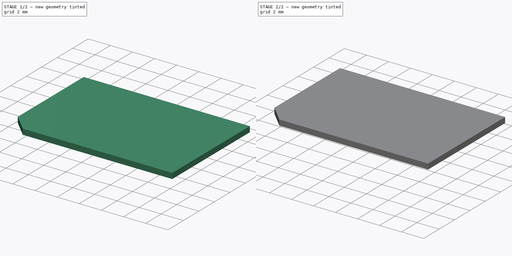
[diagram: build sequence overview — one tinted view per stage of 2, left to right]
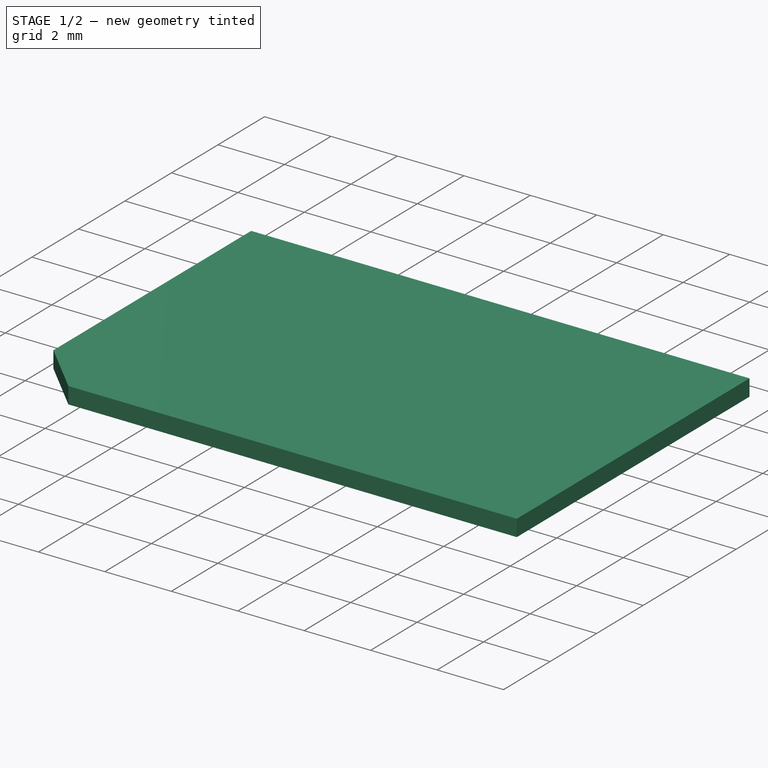
[diagram: stage 1 of 2 — iso view after this stage's code; geometry added in this stage tinted green]
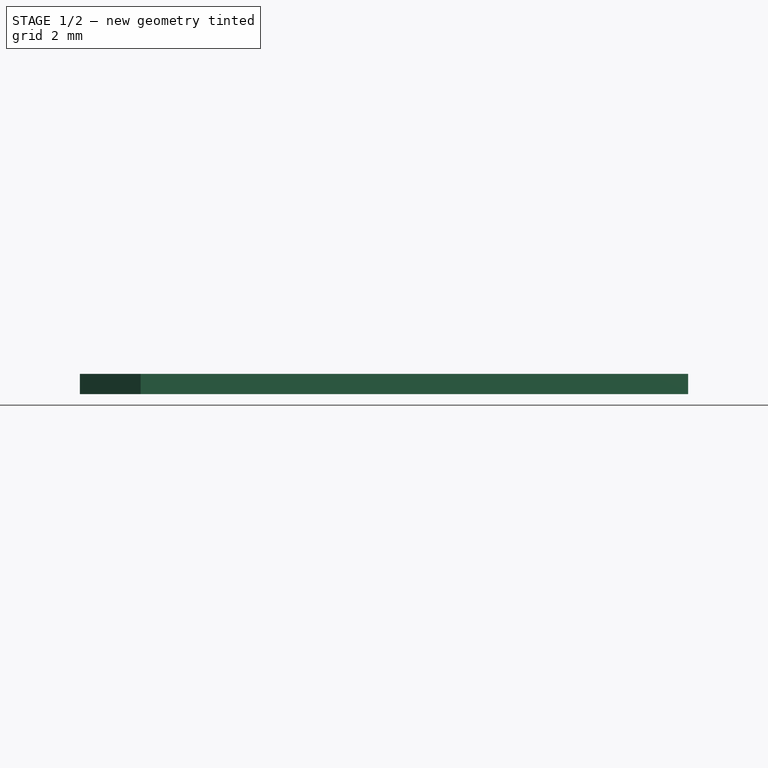
[diagram: stage 1 of 2 — front view after this stage's code; geometry added in this stage tinted green]
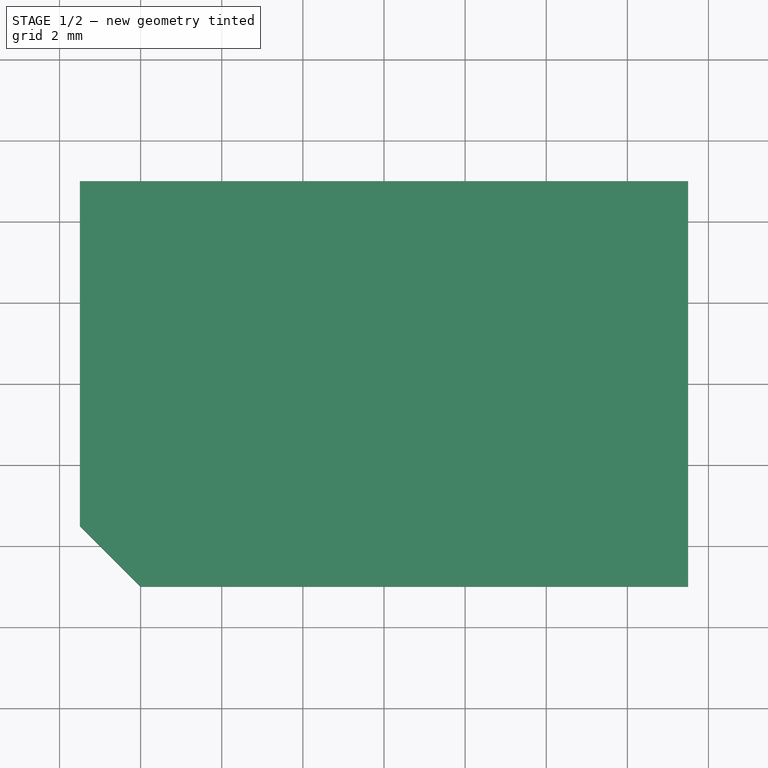
[diagram: stage 1 of 2 — top view after this stage's code; geometry added in this stage tinted green]
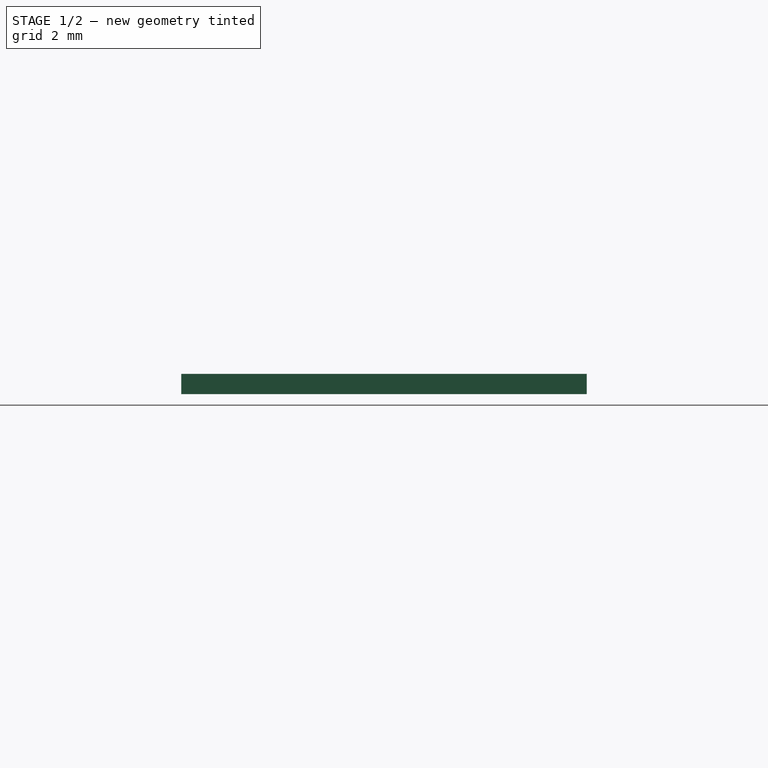
[diagram: stage 1 of 2 — right view after this stage's code; geometry added in this stage tinted green]
FCSTD DOCUMENT  (FreeCAD 1.0R39319 (Git))
Label: Keypad-ButtonWhite
License: All rights reserved
LicenseURL: http://en.wikipedia.org/wiki/All_rights_reserved
objects: Sketcher::SketchObject×2, PartDesign::Pad×2, PartDesign::Body×1
note: 11 computed .brp shape members not serialized (recipe doc carries the construction recipe); baked Part::Feature solids carry a one-line shape summary decoded from their .brp

FEATURE [Sketcher::SketchObject] Sketch002  label="Sketch001"
  ArcFitTolerance = 0
  FullyConstrained = true
  MakeInternals = false
  MapMode = 5
  Placement = pos=(0,0,1.4) rot=(0,0,1;0rad)
  sketch-geometry (5):
    g0: LineSegment StartX=-7.5 StartY=5 StartZ=0 EndX=7.5 EndY=5 EndZ=0
    g1: LineSegment StartX=7.5 StartY=5 StartZ=0 EndX=7.5 EndY=-5 EndZ=0
    g2: LineSegment StartX=7.5 StartY=-5 StartZ=0 EndX=-6 EndY=-5 EndZ=0
    g3: LineSegment StartX=-7.5 StartY=-3.5 StartZ=0 EndX=-7.5 EndY=5 EndZ=0
    g4: LineSegment StartX=-7.5 StartY=-3.5 StartZ=0 EndX=-6 EndY=-5 EndZ=0
  constraints (13):
    c: Coincident(g0,g1)
    c: Coincident(g1,g2)
    c: Coincident(g3,g0)
    c: Horizontal(g2)
    c: Vertical(g3)
    c: DistanceX(g0,g0) = 15
    c: DistanceY(g1,g1) = 10
    c: Angle(g2,g4) = 2.35619
    c: Coincident(g2,g4)
    c: Coincident(g3,g4)
    c: DistanceY(g3,g3) = 8.5
    c: Symmetric(g0,g0,g-2)
    c: Symmetric(g0,g1,g-1)
FEATURE [PartDesign::Pad] Pad
  AllowMultiFace = false
  Direction = (0,0,1)
  Length = 0.5
  Length2 = 100
  Placement = pos=(0,0,1.4) rot=(0,0,1;0rad)
  Profile = -> Sketch002
  ReferenceAxis = -> Sketch002 [N_Axis]
  Suppressed = false
  Type = 0
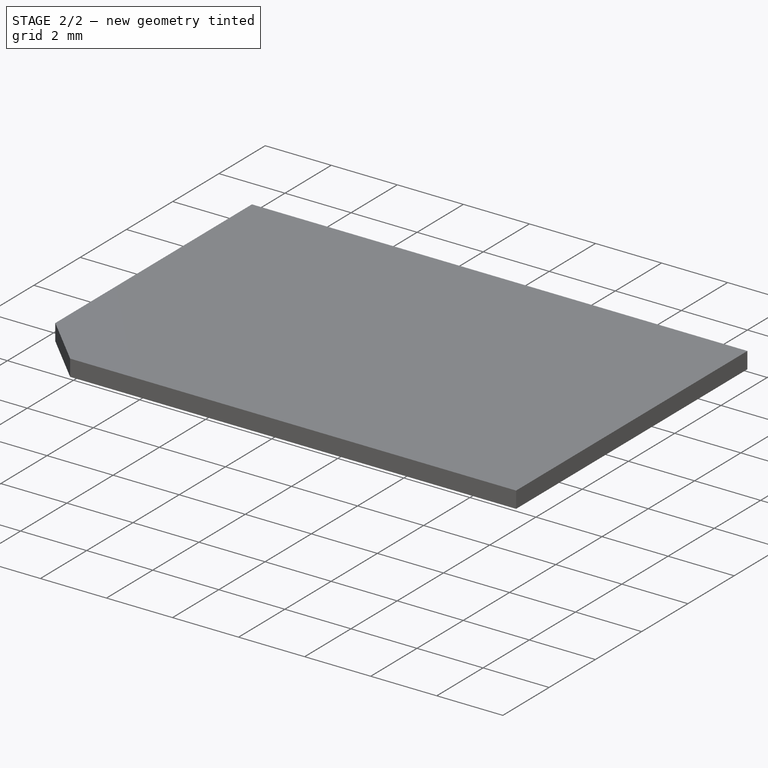
[diagram: stage 2 of 2 — iso view after this stage's code; geometry added in this stage tinted green]
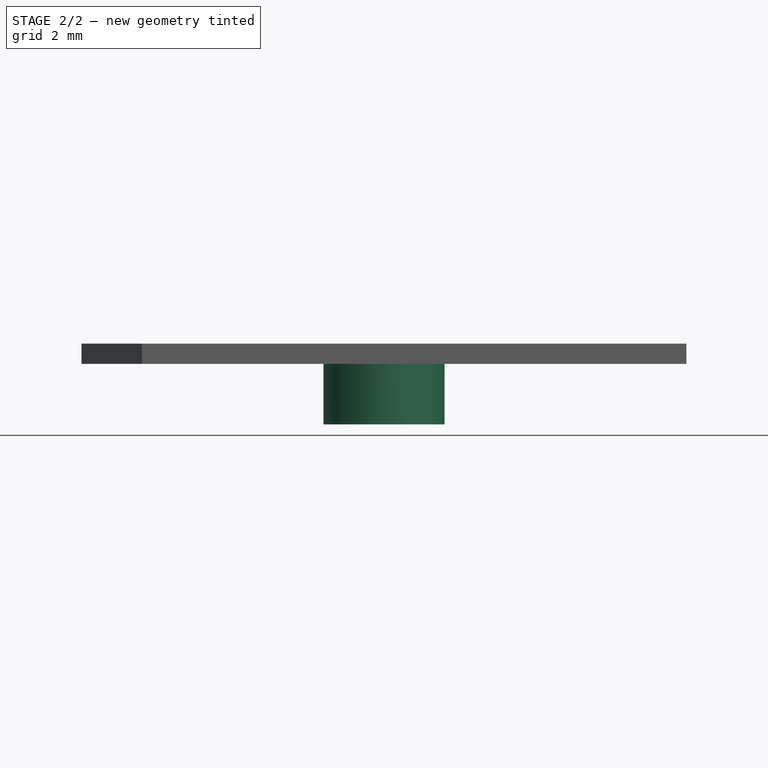
[diagram: stage 2 of 2 — front view after this stage's code; geometry added in this stage tinted green]
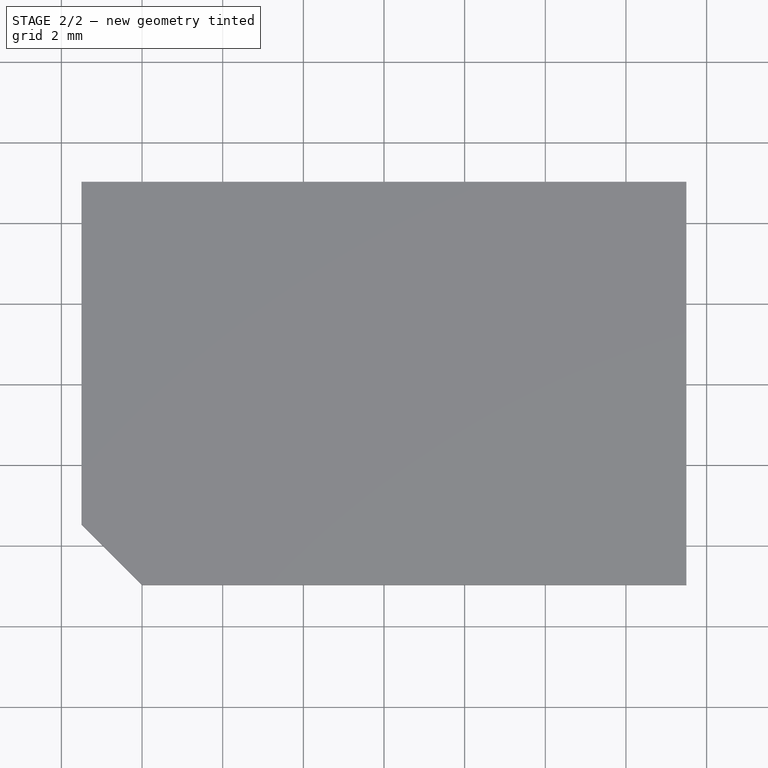
[diagram: stage 2 of 2 — top view after this stage's code; geometry added in this stage tinted green]
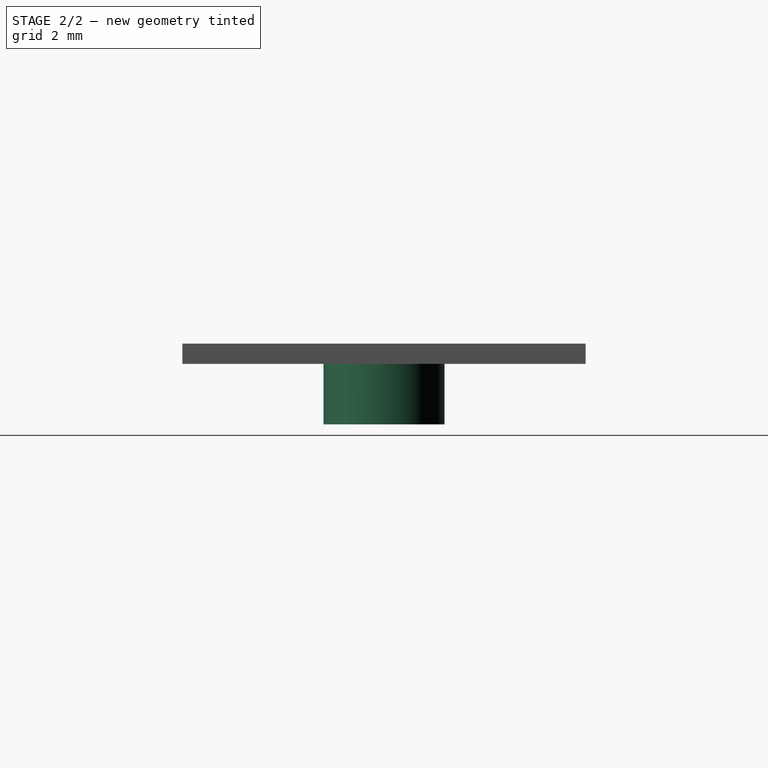
[diagram: stage 2 of 2 — right view after this stage's code; geometry added in this stage tinted green]
FEATURE [Sketcher::SketchObject] Sketch
  ArcFitTolerance = 0
  AttachmentSupport = -> [Pad]
  FullyConstrained = true
  MakeInternals = false
  MapMode = 5
  Placement = pos=(0,0,1.4) rot=(1,0,0;3.14159rad)
  sketch-geometry (1):
    g0: Circle CenterX=0 CenterY=0 CenterZ=0 NormalX=0 NormalY=0 NormalZ=1 AngleXU=0 Radius=1.5
  constraints (2):
    c: Coincident(g0,g-1)
    c: Diameter(g0) = 3
FEATURE [PartDesign::Pad] Pad001
  AllowMultiFace = false
  BaseFeature = -> Pad
  Direction = (0,0,-1)
  Length = 1.5
  Length2 = 100
  Placement = pos=(0,0,1.4) rot=(0,0,1;0rad)
  Profile = -> Sketch
  Suppressed = false
  Type = 0
FEATURE [PartDesign::Body] Body001
  AllowCompound = false
  Group = -> [Sketch002,Pad,Sketch,Pad001]
  Origin = -> Origin001
  Tip = -> Pad001
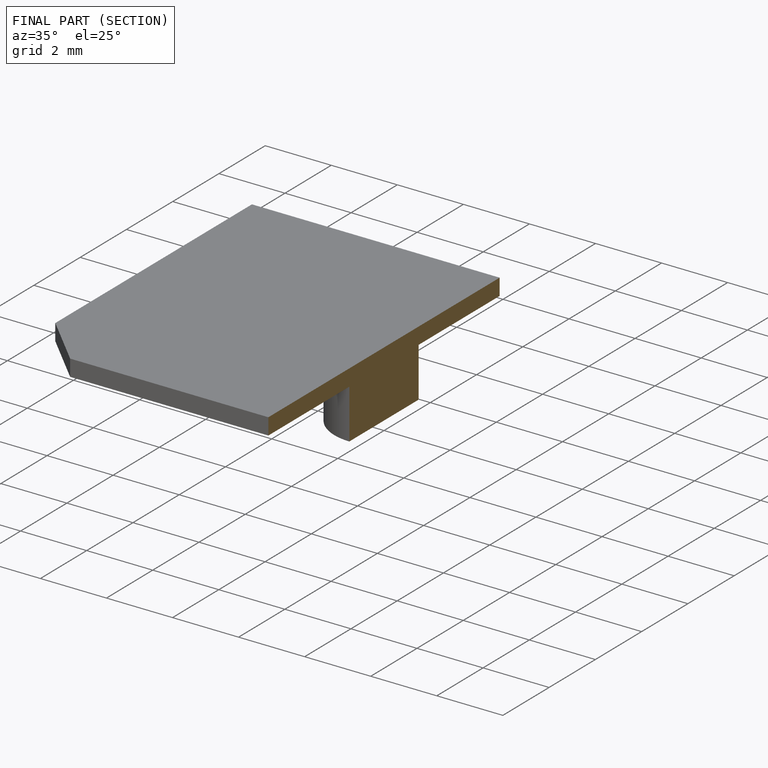
[diagram: finished part — half-section view (interior)]
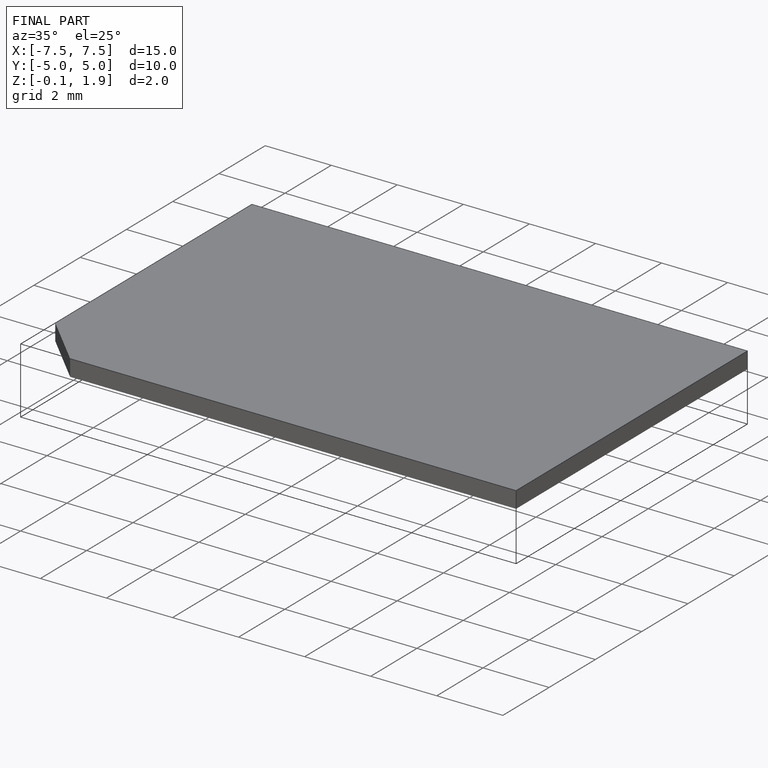
[diagram: finished part — iso view with bounding-box wireframe]
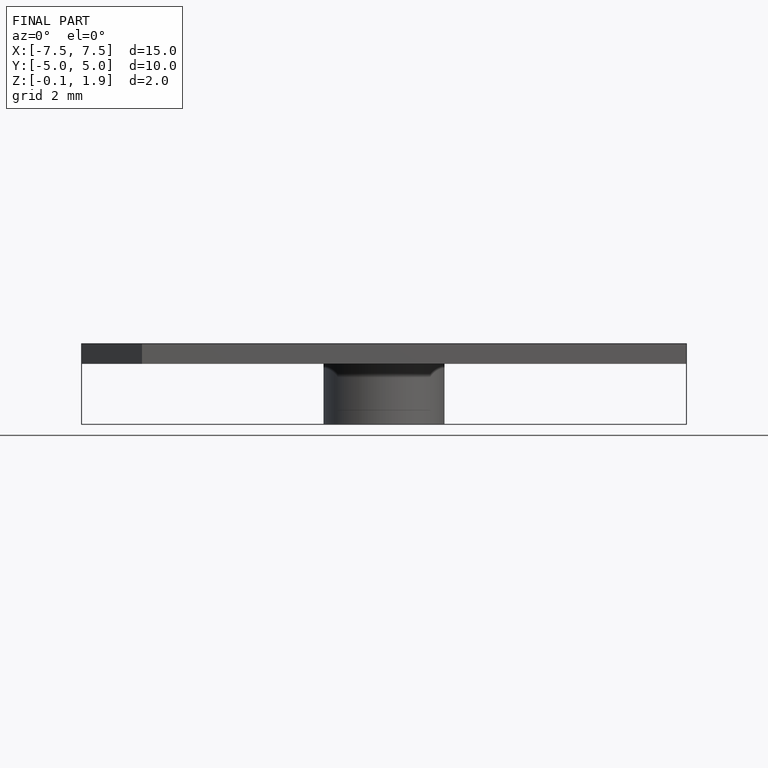
[diagram: finished part — front view with bounding-box wireframe]
